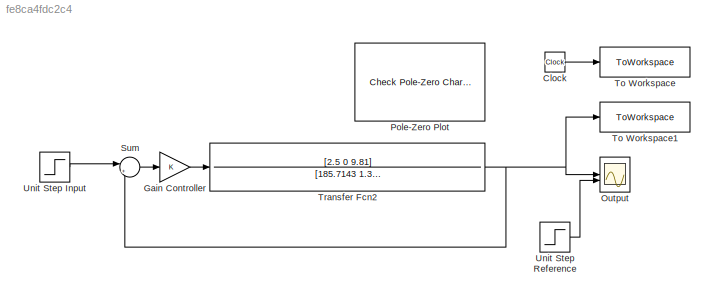
MODEL slx_fe8ca4fdc2c4
KIND model
CONFIG AbsTol = auto
CONFIG EnableMultiTasking = off
CONFIG FixedStep = auto
CONFIG MaxStep = auto
CONFIG MinStep = auto
CONFIG RelTol = 1e-3
CONFIG SampleTimeConstraint = Unconstrained
CONFIG SolverName = VariableStepAuto
CONFIG StartTime = 0.0
CONFIG StopTime = 4000
BLOCK [Clock] Clock
BLOCK [Gain] Gain Controller
BLOCK [Scope] Output
  Floating = off
  NumInputPorts = 2
  ScopeSpecificationString = Simulink.scopes.TimeScopeBlockCfg('CurrentConfiguration', extmgr.ConfigurationSet(extmgr.Configuration('Core','General UI',true,'FigureColor',[0.831372549019608 0.815686274509804 0.784313725490196]),extmgr.Configuration('Core','Source UI',true),extmgr.Configuration('Sources','WiredSimulink',true,'DataLoggingVariableName','ScopeData1'),extmgr.Configuration('Visuals','Time Domain',true,'SerializedDi...<+2787ch>
BLOCK [Reference] Pole-Zero Plot  REF=slctrl_linear/Check Pole-Zero
Characteristics
  InstantiateOnLoad = on
  LibrarySourceBlock = slctrlblks/Linear Analysis Plots/Pole-Zero Plot
  SourceBlock = slctrl_linear/Check Pole-Zero\nCharacteristics
  SourceType = Checks_PZMap
BLOCK [Sum] Sum
  Inputs = |+-
BLOCK [ToWorkspace] To Workspace
  FixptAsFi = on
  MaxDataPoints = inf
  Save2DSignal = 2-D array (concatenate along first dimension)
  VariableName = time
BLOCK [ToWorkspace] To Workspace1
  FixptAsFi = on
  MaxDataPoints = inf
  Save2DSignal = 2-D array (concatenate along first dimension)
  VariableName = data
BLOCK [TransferFcn] Transfer Fcn2
  Denominator = [185.7143 1.3693 1748.9827 5.3729 0]
  Numerator = [2.5 0 9.81]
  ParameterTunability = Optimized
BLOCK [Step] Unit Step Input
  SampleTime = 0
BLOCK [Step] Unit Step Reference
  SampleTime = 0
LINE Clock:1 -> To Workspace:1
LINE Gain Controller:1 -> Transfer Fcn2:1
LINE Sum:1 -> Gain Controller:1
NET Transfer Fcn2:1 -> Output:1, Sum:2, To Workspace1:1
LINE Unit Step Input:1 -> Sum:1
LINE Unit Step Reference:1 -> Output:2
note: NET lines group one-source signal fan-out (src -> all destinations, sorted); 1:1 wires keep LINE
